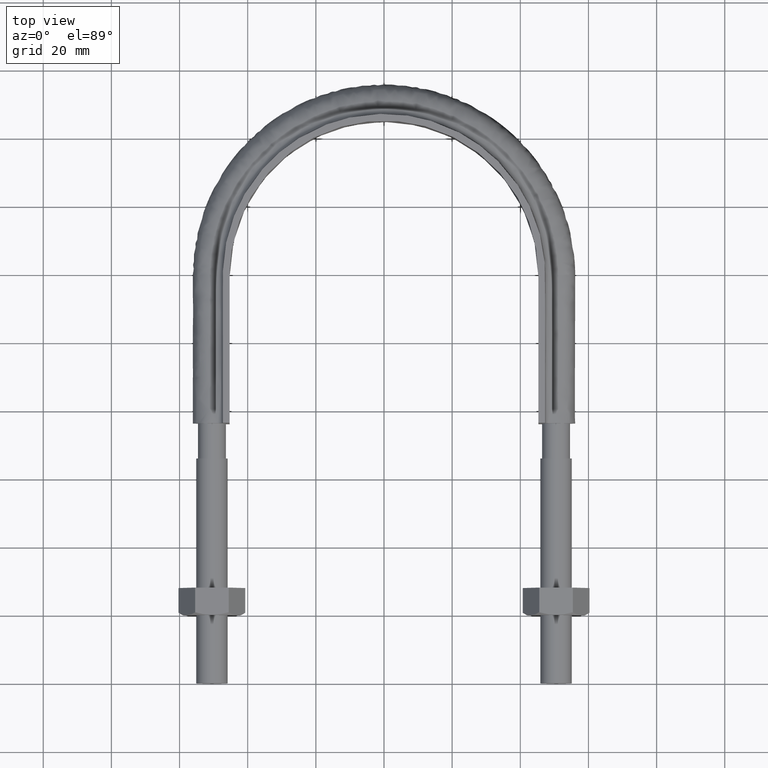
[diagram: clean part render]
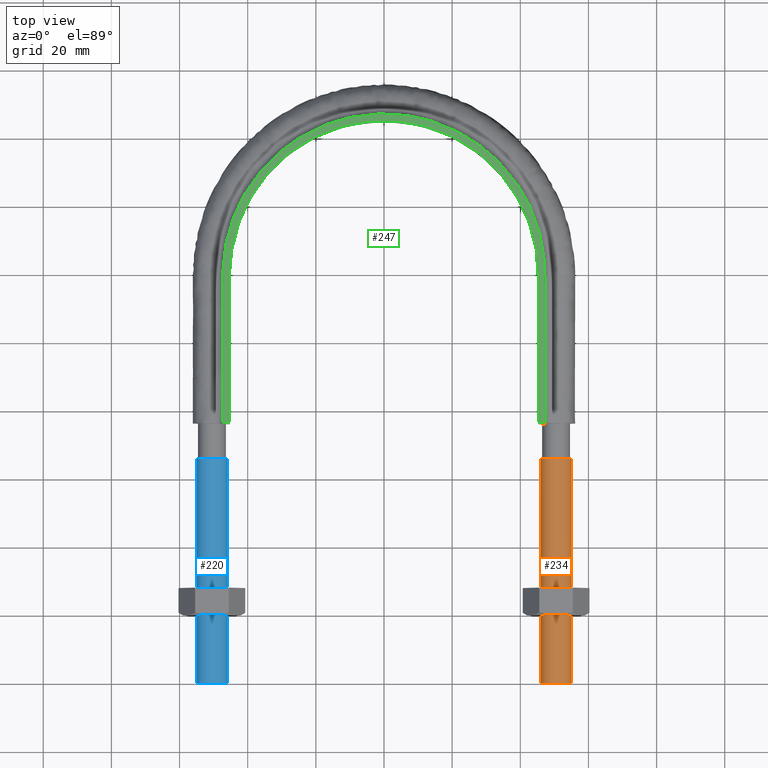
[diagram: same view with three faces highlighted in distinct colors, each labeled with its STEP entity id]
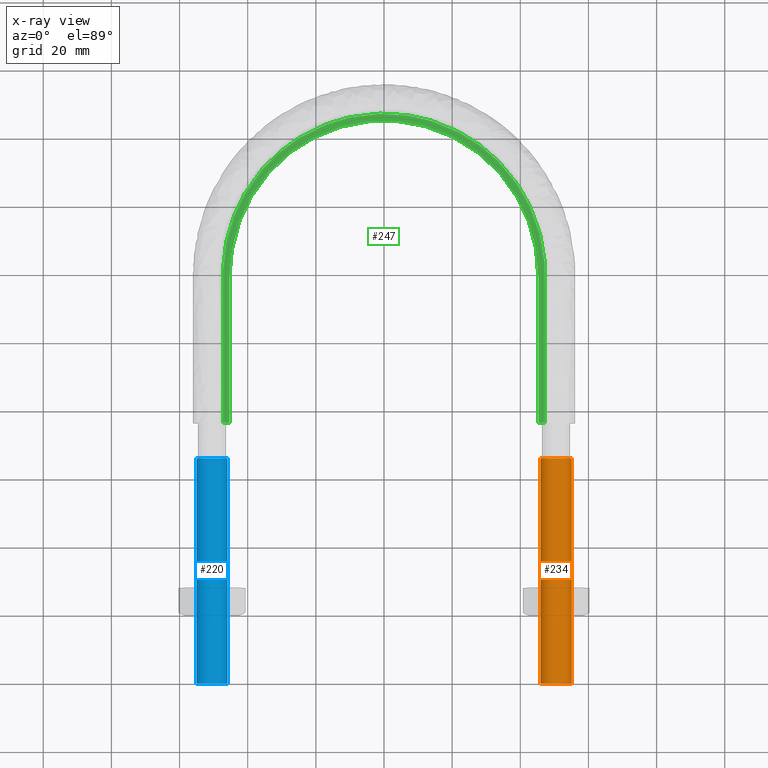
[diagram: x-ray of the same camera — body ghosted, the three highlighted faces saturated]
A machine part, top view with three faces highlighted in distinct colors.
The next image is the same camera in x-ray (body ghosted, the three faces saturated) — at least one of them is partly hidden behind the body in this view.
Their STEP definitions:

[orange] entity #234 — the highlighted cylindrical surface (bore or boss wall) has radius 4.6 mm, axis along (0, 1, 0).
#234 = ADVANCED_FACE( '', ( #331, #332 ), #333, .T. );
#331 = FACE_OUTER_BOUND( '', #662, .T. );
#332 = FACE_OUTER_BOUND( '', #663, .T. );
#333 = CYLINDRICAL_SURFACE( '', #664, 4.60000000000000 );
#662 = EDGE_LOOP( '', ( #1550 ) );
#663 = EDGE_LOOP( '', ( #1551 ) );
#664 = AXIS2_PLACEMENT_3D( '', #1552, #1553, #1554 );
#1550 = ORIENTED_EDGE( '', *, *, #2023, .T. );
#1551 = ORIENTED_EDGE( '', *, *, #2024, .F. );
#1552 = CARTESIAN_POINT( '', ( 50.5000000000000, 66.0000000000000, 4.09630825353585E-015 ) );
#1553 = DIRECTION( '', ( 2.44921270764475E-016, 1.00000000000000, 6.12303176911189E-017 ) );
#1554 = DIRECTION( '', ( 1.00000000000000, -2.44921270764475E-016, -7.49830360911069E-033 ) );
#2023 = EDGE_CURVE( '', #2193, #2193, #2194, .T. );
#2024 = EDGE_CURVE( '', #2195, #2195, #2196, .T. );
#2193 = VERTEX_POINT( '', #2485 );
#2194 = CIRCLE( '', #2486, 4.60000000000000 );
#2195 = VERTEX_POINT( '', #2487 );
#2196 = CIRCLE( '', #2488, 4.60000000000000 );
#2485 = CARTESIAN_POINT( '', ( 55.1000000000000, 66.0000000000000, 4.09630825353585E-015 ) );
#2486 = AXIS2_PLACEMENT_3D( '', #3107, #3108, #3109 );
#2487 = CARTESIAN_POINT( '', ( 55.1000000000000, -1.34951620191226E-014, 5.51072859220066E-017 ) );
#2488 = AXIS2_PLACEMENT_3D( '', #3110, #3111, #3112 );
#3107 = CARTESIAN_POINT( '', ( 50.5000000000000, 66.0000000000000, 4.09630825353585E-015 ) );
#3108 = DIRECTION( '', ( -2.44921270764476E-016, -1.00000000000000, -6.12303176911189E-017 ) );
#3109 = DIRECTION( '', ( 1.00000000000000, -2.44921270764476E-016, -7.49830360911070E-033 ) );
#3110 = CARTESIAN_POINT( '', ( 50.5000000000000, -1.23685241736060E-014, 5.51072859220066E-017 ) );
#3111 = DIRECTION( '', ( -2.44921270764476E-016, -1.00000000000000, -6.12303176911189E-017 ) );
#3112 = DIRECTION( '', ( 1.00000000000000, -2.44921270764476E-016, -7.49830360911070E-033 ) );

[blue] entity #220 — the highlighted cylindrical surface (bore or boss wall) has radius 4.6 mm, axis along (0, 1, 0).
#220 = ADVANCED_FACE( '', ( #299, #300 ), #301, .T. );
#299 = FACE_OUTER_BOUND( '', #471, .T. );
#300 = FACE_OUTER_BOUND( '', #472, .T. );
#301 = CYLINDRICAL_SURFACE( '', #473, 4.60000000000000 );
#471 = EDGE_LOOP( '', ( #1465 ) );
#472 = EDGE_LOOP( '', ( #1466 ) );
#473 = AXIS2_PLACEMENT_3D( '', #1467, #1468, #1469 );
#1465 = ORIENTED_EDGE( '', *, *, #1999, .T. );
#1466 = ORIENTED_EDGE( '', *, *, #2000, .F. );
#1467 = CARTESIAN_POINT( '', ( -50.5000000000000, 66.0000000000000, 4.09630825353585E-015 ) );
#1468 = DIRECTION( '', ( 2.44921270764475E-016, 1.00000000000000, 6.12303176911189E-017 ) );
#1469 = DIRECTION( '', ( 1.00000000000000, -2.44921270764475E-016, -7.49830360911069E-033 ) );
#1999 = EDGE_CURVE( '', #2159, #2159, #2160, .T. );
#2000 = EDGE_CURVE( '', #2161, #2161, #2162, .T. );
#2159 = VERTEX_POINT( '', #2409 );
#2160 = CIRCLE( '', #2410, 4.60000000000000 );
#2161 = VERTEX_POINT( '', #2411 );
#2162 = CIRCLE( '', #2412, 4.60000000000000 );
#2409 = CARTESIAN_POINT( '', ( -45.9000000000000, 66.0000000000000, 4.09630825353585E-015 ) );
#2410 = AXIS2_PLACEMENT_3D( '', #3077, #3078, #3079 );
#2411 = CARTESIAN_POINT( '', ( -45.9000000000000, 1.12418863280894E-014, 5.51072859220073E-017 ) );
#2412 = AXIS2_PLACEMENT_3D( '', #3080, #3081, #3082 );
#3077 = CARTESIAN_POINT( '', ( -50.5000000000000, 66.0000000000000, 4.09630825353585E-015 ) );
#3078 = DIRECTION( '', ( -2.44921270764475E-016, -1.00000000000000, -6.12303176911189E-017 ) );
#3079 = DIRECTION( '', ( 1.00000000000000, -2.44921270764475E-016, -1.01150562509412E-032 ) );
#3080 = CARTESIAN_POINT( '', ( -50.5000000000000, 1.23685241736060E-014, 5.51072859220074E-017 ) );
#3081 = DIRECTION( '', ( -2.44921270764475E-016, -1.00000000000000, -6.12303176911189E-017 ) );
#3082 = DIRECTION( '', ( 1.00000000000000, -2.44921270764475E-016, -1.01150562509412E-032 ) );

[green] entity #247 — the highlighted planar face has unit normal (0, 0, 1).
#247 = ADVANCED_FACE( '', ( #362 ), #363, .T. );
#362 = FACE_OUTER_BOUND( '', #853, .T. );
#363 = PLANE( '', #854 );
#853 = EDGE_LOOP( '', ( #1634, #1635, #1636, #1637 ) );
#854 = AXIS2_PLACEMENT_3D( '', #1638, #1639, #1640 );
#1634 = ORIENTED_EDGE( '', *, *, #2026, .T. );
#1635 = ORIENTED_EDGE( '', *, *, #2037, .F. );
#1636 = ORIENTED_EDGE( '', *, *, #2034, .T. );
#1637 = ORIENTED_EDGE( '', *, *, #2038, .F. );
#1638 = CARTESIAN_POINT( '', ( 60.0000000000000, 186.300000000000, 12.5000000000000 ) );
#1639 = DIRECTION( '', ( 0.000000000000000, 0.000000000000000, 1.00000000000000 ) );
#1640 = DIRECTION( '', ( 1.00000000000000, 0.000000000000000, 0.000000000000000 ) );
#2026 = EDGE_CURVE( '', #2200, #2197, #2201, .F. );
#2034 = EDGE_CURVE( '', #2214, #2215, #2216, .F. );
#2037 = EDGE_CURVE( '', #2214, #2197, #2219, .T. );
#2038 = EDGE_CURVE( '', #2200, #2215, #2220, .T. );
#2197 = VERTEX_POINT( '', #2489 );
#2200 = VERTEX_POINT( '', #2493 );
#2201 = LINE( '', #2494, #2495 );
#2214 = VERTEX_POINT( '', #2588 );
#2215 = VERTEX_POINT( '', #2589 );
#2216 = LINE( '', #2590, #2591 );
#2219 = B_SPLINE_CURVE_WITH_KNOTS( '', 3, ( #2625, #2626, #2627, #2628, #2629, #2630, #2631, #2632, #2633, #2634, #2635, #2636, #2637, #2638, #2639, #2640, #2641, #2642, #2643, #2644, #2645, #2646, #2647, #2648, #2649, #2650, #2651, #2652, #2653, #2654, #2655, #2656, #2657, #2658, #2659, #2660, #2661, #2662, #2663, #2664, #2665, #2666, #2667, #2668, #2669, #2670, #2671, #2672, #2673, #2674, #2675, #2676, #2677, #2678, #2679, #2680, #2681, #2682, #2683, #2684, #2685, #2686, #2687, #2688, #2689, #2690, #2691, #2692, #2693, #2694, #2695, #2696, #2697, #2698, #2699, #2700, #2701, #2702, #2703, #2704, #2705, #2706, #2707, #2708 ), .UNSPECIFIED., .F., .F., ( 4, 1, 2, 2, 2, 2, 2, 2, 2, 2, 2, 2, 2, 2, 2, 2, 2, 2, 2, 2, 2, 2, 2, 2, 2, 2, 2, 2, 2, 2, 2, 2, 2, 2, 2, 2, 2, 2, 2, 2, 2, 1, 4 ), ( 0.000000000000000, 0.0287543779946544, 0.0431315669919816, 0.0440301413043146, 0.0449287156166475, 0.0467258642413134, 0.0503201614906452, 0.0575087559893089, 0.0611030532386408, 0.0629002018633068, 0.0646973504879727, 0.0718859449866363, 0.0754802422359681, 0.0790745394852999, 0.0862631339839634, 0.0898574312332952, 0.0916545798579611, 0.0934517284826270, 0.100640322981290, 0.107828917479954, 0.111423214729286, 0.115017511978618, 0.122206106477281, 0.124003255101947, 0.125800403726613, 0.129394700975945, 0.136583295474608, 0.138380444099274, 0.140177592723940, 0.143771889973272, 0.150960484471935, 0.154554781721267, 0.158149078970599, 0.165337673469262, 0.168931970718594, 0.170729119343260, 0.172526267967926, 0.179714862466589, 0.183309159715921, 0.185106308340587, 0.186903456965253, 0.201280645962581, 0.230035023957236 ), .UNSPECIFIED. );
#2220 = B_SPLINE_CURVE_WITH_KNOTS( '', 3, ( #2709, #2710, #2711, #2712, #2713, #2714, #2715, #2716, #2717, #2718, #2719, #2720, #2721, #2722, #2723, #2724 ), .UNSPECIFIED., .F., .F., ( 4, 3, 1, 1, 1, 1, 1, 1, 3, 4 ), ( 0.0686695278969954, 1.00000000000000, 2.00000000000000, 3.00000000000000, 4.00000000000000, 5.00000000000000, 6.00000000000000, 7.00000000000000, 8.00000000000000, 8.93133047210300 ), .UNSPECIFIED. );
#2489 = CARTESIAN_POINT( '', ( -45.3000000000000, 76.3000000000000, 12.5000000000000 ) );
#2493 = CARTESIAN_POINT( '', ( -47.3000000000000, 76.3000000000000, 12.5000000000000 ) );
#2494 = CARTESIAN_POINT( '', ( 60.0000000000000, 76.3000000000000, 12.5000000000000 ) );
#2495 = VECTOR( '', #3114, 1000.00000000000 );
#2588 = CARTESIAN_POINT( '', ( 45.3000000000000, 76.3000000000000, 12.5000000000000 ) );
#2589 = CARTESIAN_POINT( '', ( 47.3000000000000, 76.3000000000000, 12.5000000000000 ) );
#2590 = CARTESIAN_POINT( '', ( 60.0000000000000, 76.3000000000000, 12.5000000000000 ) );
#2591 = VECTOR( '', #3117, 1000.00000000000 );
#2625 = CARTESIAN_POINT( '', ( 45.3000000000000, 76.3000000000000, 12.5000000000000 ) );
#2626 = CARTESIAN_POINT( '', ( 45.3000000000000, 85.8848205646283, 12.5000000000000 ) );
#2627 = CARTESIAN_POINT( '', ( 45.3000000000000, 100.262051411571, 12.5000000000000 ) );
#2628 = CARTESIAN_POINT( '', ( 45.3000000000000, 114.639282258513, 12.5000000000000 ) );
#2629 = CARTESIAN_POINT( '', ( 45.3000000000000, 119.731218183472, 12.5000000000000 ) );
#2630 = CARTESIAN_POINT( '', ( 45.2997760120249, 120.030743285675, 12.5000000000000 ) );
#2631 = CARTESIAN_POINT( '', ( 45.2912777717044, 120.629774066281, 12.5000000000000 ) );
#2632 = CARTESIAN_POINT( '', ( 45.2840050595566, 120.929282161215, 12.5000000000000 ) );
#2633 = CARTESIAN_POINT( '', ( 45.2531480099003, 121.827784636791, 12.5000000000000 ) );
#2634 = CARTESIAN_POINT( '', ( 45.2204957104833, 122.427200024519, 12.5000000000000 ) );
#2635 = CARTESIAN_POINT( '', ( 45.0866957945141, 124.222494949273, 12.5000000000000 ) );
#2636 = CARTESIAN_POINT( '', ( 44.9504291017170, 125.407906322015, 12.5000000000000 ) );
#2637 = CARTESIAN_POINT( '', ( 44.4061177465217, 128.931168904230, 12.5000000000000 ) );
#2638 = CARTESIAN_POINT( '', ( 43.8636822485659, 131.236321194623, 12.5000000000000 ) );
#2639 = CARTESIAN_POINT( '', ( 42.7815683609983, 134.628729902663, 12.5000000000000 ) );
#2640 = CARTESIAN_POINT( '', ( 42.3758385758422, 135.748577639201, 12.5000000000000 ) );
#2641 = CARTESIAN_POINT( '', ( 41.6971261299260, 137.411288741198, 12.5000000000000 ) );
#2642 = CARTESIAN_POINT( '', ( 41.4587485176160, 137.963522487295, 12.5000000000000 ) );
#2643 = CARTESIAN_POINT( '', ( 40.9623939009448, 139.052686028662, 12.5000000000000 ) );
#2644 = CARTESIAN_POINT( '', ( 40.7040140940422, 139.590633634307, 12.5000000000000 ) );
#2645 = CARTESIAN_POINT( '', ( 39.3618284958927, 142.247672872113, 12.5000000000000 ) );
#2646 = CARTESIAN_POINT( '', ( 38.1287732829049, 144.269715209024, 12.5000000000000 ) );
#2647 = CARTESIAN_POINT( '', ( 36.0483927303406, 147.152702706861, 12.5000000000000 ) );
#2648 = CARTESIAN_POINT( '', ( 35.3162279376428, 148.088530904417, 12.5000000000000 ) );
#2649 = CARTESIAN_POINT( '', ( 33.7729613787723, 149.908858607226, 12.5000000000000 ) );
#2650 = CARTESIAN_POINT( '', ( 32.9584983694080, 150.796352407073, 12.5000000000000 ) );
#2651 = CARTESIAN_POINT( '', ( 30.4343658146005, 153.337344556213, 12.5000000000000 ) );
#2652 = CARTESIAN_POINT( '', ( 28.6360692622387, 154.881493975360, 12.5000000000000 ) );
#2653 = CARTESIAN_POINT( '', ( 25.7668653719943, 156.974964438366, 12.5000000000000 ) );
#2654 = CARTESIAN_POINT( '', ( 24.7819445161321, 157.635801019642, 12.5000000000000 ) );
#2655 = CARTESIAN_POINT( '', ( 23.2616146962021, 158.571356100425, 12.5000000000000 ) );
#2656 = CARTESIAN_POINT( '', ( 22.7476691870377, 158.873910471946, 12.5000000000000 ) );
#2657 = CARTESIAN_POINT( '', ( 21.7052773821733, 159.460213200769, 12.5000000000000 ) );
#2658 = CARTESIAN_POINT( '', ( 21.1756556167053, 159.744537298346, 12.5000000000000 ) );
#2659 = CARTESIAN_POINT( '', ( 18.5103111801555, 161.108501344270, 12.5000000000000 ) );
#2660 = CARTESIAN_POINT( '', ( 16.3185331092020, 162.020394560135, 12.5000000000000 ) );
#2661 = CARTESIAN_POINT( '', ( 11.8189661583874, 163.494646423883, 12.5000000000000 ) );
#2662 = CARTESIAN_POINT( '', ( 9.51076198777621, 164.055753822214, 12.5000000000000 ) );
#2663 = CARTESIAN_POINT( '', ( 5.95662532797862, 164.620734661634, 12.5000000000000 ) );
#2664 = CARTESIAN_POINT( '', ( 4.76788785050957, 164.761147485507, 12.5000000000000 ) );
#2665 = CARTESIAN_POINT( '', ( 2.39647070391252, 164.947851083060, 12.5000000000000 ) );
#2666 = CARTESIAN_POINT( '', ( 1.21153117527859, 164.994499013257, 12.5000000000000 ) );
#2667 = CARTESIAN_POINT( '', ( -2.34101805316253, 164.996625356462, 12.5000000000000 ) );
#2668 = CARTESIAN_POINT( '', ( -4.70637779815004, 164.815464639074, 12.5000000000000 ) );
#2669 = CARTESIAN_POINT( '', ( -7.65915858277227, 164.351020241084, 12.5000000000000 ) );
#2670 = CARTESIAN_POINT( '', ( -8.25083455194662, 164.245862246466, 12.5000000000000 ) );
#2671 = CARTESIAN_POINT( '', ( -9.42653190172392, 164.012409776832, 12.5000000000000 ) );
#2672 = CARTESIAN_POINT( '', ( -10.0101476162836, 163.884250803394, 12.5000000000000 ) );
#2673 = CARTESIAN_POINT( '', ( -11.7484468334342, 163.465883377835, 12.5000000000000 ) );
#2674 = CARTESIAN_POINT( '', ( -12.8906527223969, 163.141974327520, 12.5000000000000 ) );
#2675 = CARTESIAN_POINT( '', ( -16.2689101217008, 162.039631660257, 12.5000000000000 ) );
#2676 = CARTESIAN_POINT( '', ( -18.4569925447982, 161.131639060066, 12.5000000000000 ) );
#2677 = CARTESIAN_POINT( '', ( -21.1113012403399, 159.778432115202, 12.5000000000000 ) );
#2678 = CARTESIAN_POINT( '', ( -21.6380918925233, 159.496795189040, 12.5000000000000 ) );
#2679 = CARTESIAN_POINT( '', ( -22.6833837807200, 158.911132577781, 12.5000000000000 ) );
#2680 = CARTESIAN_POINT( '', ( -23.2017061819432, 158.607128404409, 12.5000000000000 ) );
#2681 = CARTESIAN_POINT( '', ( -24.7303471350012, 157.669564342871, 12.5000000000000 ) );
#2682 = CARTESIAN_POINT( '', ( -25.7191011998732, 157.007938274698, 12.5000000000000 ) );
#2683 = CARTESIAN_POINT( '', ( -28.5955069273408, 154.914712609781, 12.5000000000000 ) );
#2684 = CARTESIAN_POINT( '', ( -30.3928386158799, 153.374206663575, 12.5000000000000 ) );
#2685 = CARTESIAN_POINT( '', ( -32.9098802473355, 150.847665641424, 12.5000000000000 ) );
#2686 = CARTESIAN_POINT( '', ( -33.7201063858692, 149.968144324298, 12.5000000000000 ) );
#2687 = CARTESIAN_POINT( '', ( -35.2745676507393, 148.140548074671, 12.5000000000000 ) );
#2688 = CARTESIAN_POINT( '', ( -36.0108033379542, 147.202093103808, 12.5000000000000 ) );
#2689 = CARTESIAN_POINT( '', ( -38.0999731742671, 144.314831254988, 12.5000000000000 ) );
#2690 = CARTESIAN_POINT( '', ( -39.3343184899538, 142.294697861215, 12.5000000000000 ) );
#2691 = CARTESIAN_POINT( '', ( -40.9440306770637, 139.119061107137, 12.5000000000000 ) );
#2692 = CARTESIAN_POINT( '', ( -41.4398476877741, 138.036003764877, 12.5000000000000 ) );
#2693 = CARTESIAN_POINT( '', ( -42.1215319712500, 136.374102391935, 12.5000000000000 ) );
#2694 = CARTESIAN_POINT( '', ( -42.3385970417913, 135.813283805220, 12.5000000000000 ) );
#2695 = CARTESIAN_POINT( '', ( -42.7483267135284, 134.689073533850, 12.5000000000000 ) );
#2696 = CARTESIAN_POINT( '', ( -42.9414928116360, 134.124536114339, 12.5000000000000 ) );
#2697 = CARTESIAN_POINT( '', ( -43.8499727665167, 131.289925270555, 12.5000000000000 ) );
#2698 = CARTESIAN_POINT( '', ( -44.3947073189255, 128.984386713933, 12.5000000000000 ) );
#2699 = CARTESIAN_POINT( '', ( -44.9423619636432, 125.470058132087, 12.5000000000000 ) );
#2700 = CARTESIAN_POINT( '', ( -45.0797192826280, 124.289218942135, 12.5000000000000 ) );
#2701 = CARTESIAN_POINT( '', ( -45.2157289936545, 122.503401000382, 12.5000000000000 ) );
#2702 = CARTESIAN_POINT( '', ( -45.2493799141445, 121.905563911382, 12.5000000000000 ) );
#2703 = CARTESIAN_POINT( '', ( -45.2926573150340, 120.705446197623, 12.5000000000000 ) );
#2704 = CARTESIAN_POINT( '', ( -45.3000000000000, 120.105377557368, 12.5000000000000 ) );
#2705 = CARTESIAN_POINT( '', ( -45.3000000000000, 114.704714570843, 12.5000000000000 ) );
#2706 = CARTESIAN_POINT( '', ( -45.3000000000000, 100.302946606777, 12.5000000000000 ) );
#2707 = CARTESIAN_POINT( '', ( -45.3000000000000, 85.9011786427107, 12.5000000000000 ) );
#2708 = CARTESIAN_POINT( '', ( -45.3000000000000, 76.3000000000001, 12.5000000000000 ) );
#2709 = CARTESIAN_POINT( '', ( -47.3000000000000, 76.3000000000000, 12.5000000000000 ) );
#2710 = CARTESIAN_POINT( '', ( -47.3000000000000, 90.7666666666668, 12.5000000000000 ) );
#2711 = CARTESIAN_POINT( '', ( -47.3000000000000, 105.233333333334, 12.5000000000000 ) );
#2712 = CARTESIAN_POINT( '', ( -47.3000000000000, 119.700000000000, 12.5000000000000 ) );
#2713 = CARTESIAN_POINT( '', ( -47.3000000000000, 126.766118839385, 12.5000000000000 ) );
#2714 = CARTESIAN_POINT( '', ( -44.0706150865366, 140.927141121989, 12.5000000000000 ) );
#2715 = CARTESIAN_POINT( '', ( -30.4978119078285, 157.942032975526, 12.5000000000000 ) );
#2716 = CARTESIAN_POINT( '', ( -10.8845430496578, 167.388501700335, 12.5000000000000 ) );
#2717 = CARTESIAN_POINT( '', ( 10.8845430496579, 167.388501700335, 12.5000000000000 ) );
#2718 = CARTESIAN_POINT( '', ( 30.4978119078286, 157.942032975526, 12.5000000000000 ) );
#2719 = CARTESIAN_POINT( '', ( 44.0706150865366, 140.927141121989, 12.5000000000000 ) );
#2720 = CARTESIAN_POINT( '', ( 47.3000000000000, 126.766118839385, 12.5000000000000 ) );
#2721 = CARTESIAN_POINT( '', ( 47.3000000000000, 119.700000000000, 12.5000000000000 ) );
#2722 = CARTESIAN_POINT( '', ( 47.3000000000000, 105.233333333334, 12.5000000000000 ) );
#2723 = CARTESIAN_POINT( '', ( 47.3000000000000, 90.7666666666667, 12.5000000000000 ) );
#2724 = CARTESIAN_POINT( '', ( 47.3000000000000, 76.3000000000000, 12.5000000000000 ) );
#3114 = DIRECTION( '', ( -1.00000000000000, 2.75411799042744E-080, 0.000000000000000 ) );
#3117 = DIRECTION( '', ( -1.00000000000000, 2.75411799042744E-080, 0.000000000000000 ) );